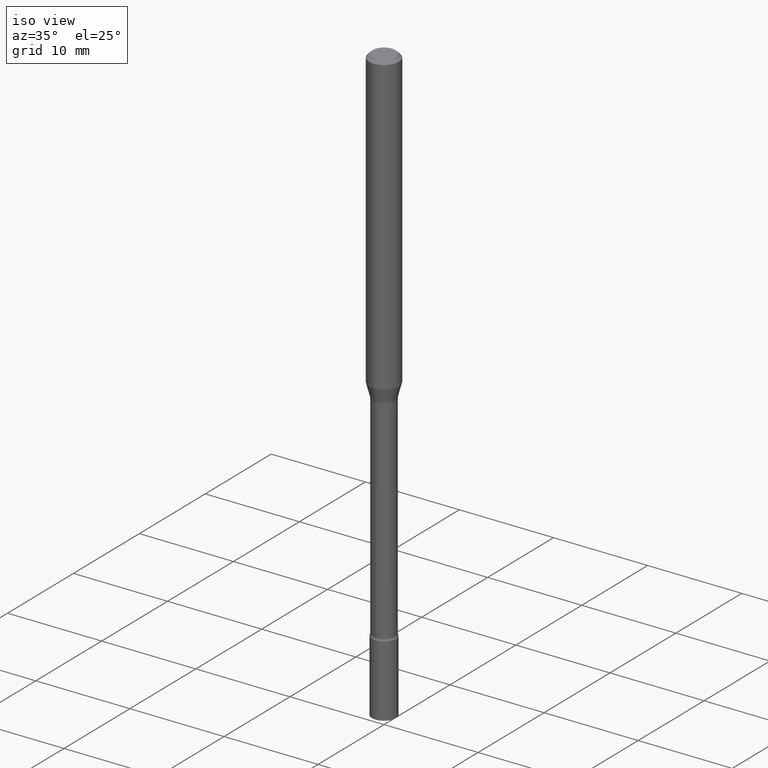
[diagram: clean part render]
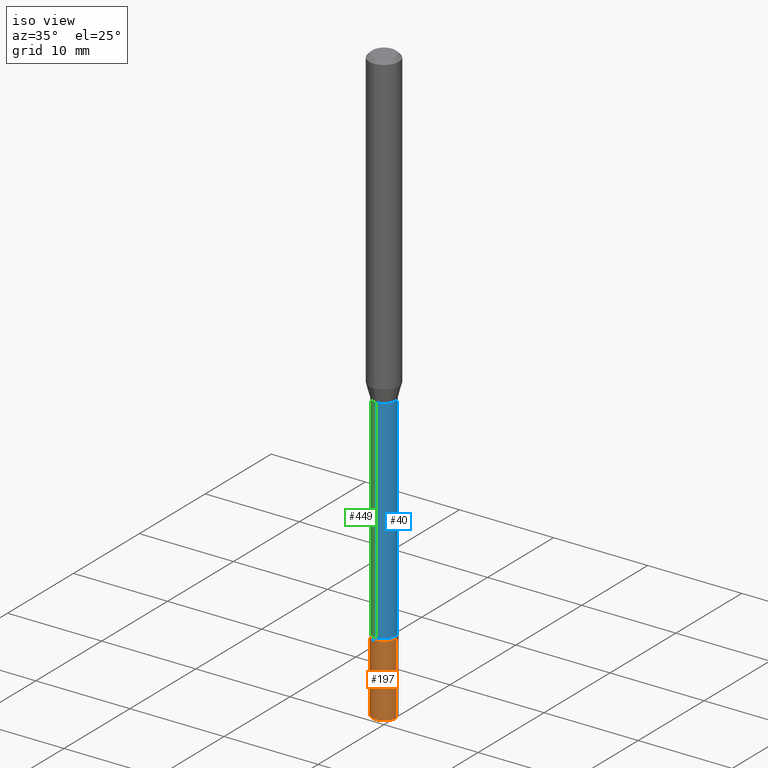
[diagram: same view with three faces highlighted in distinct colors, each labeled with its STEP entity id]
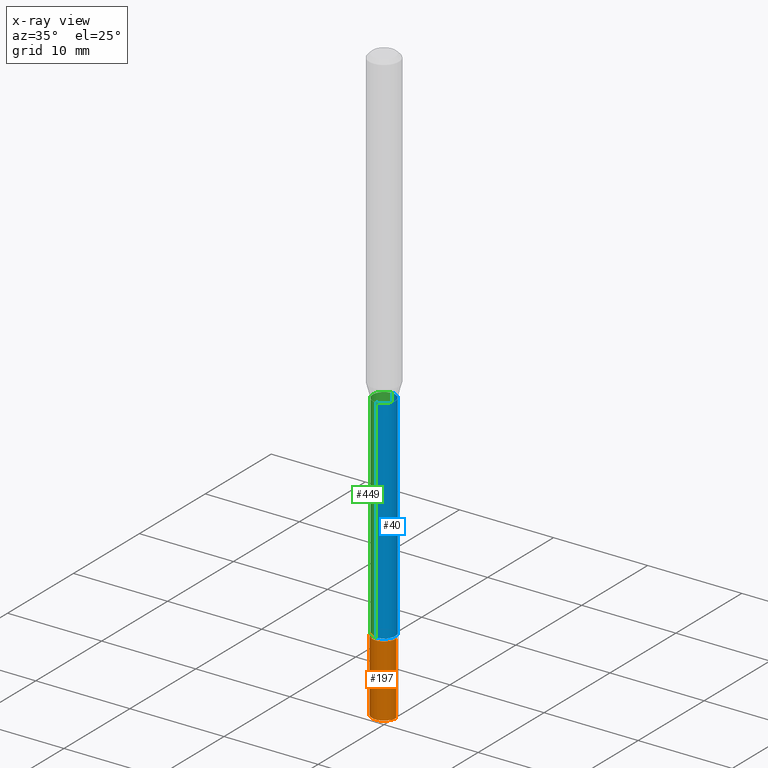
[diagram: x-ray of the same camera — body ghosted, the three highlighted faces saturated]
A machine part, iso view with three faces highlighted in distinct colors.
The next image is the same camera in x-ray (body ghosted, the three faces saturated) — at least one of them is partly hidden behind the body in this view.
Their STEP definitions:

[orange] entity #197 — the highlighted cylindrical surface (edge-blend (fillet) strip) has radius 1.27 mm, axis along (-0, 0, 1).
#51 = CARTESIAN_POINT ( 'NONE',  ( 5.380031373607300737E-29, -7.681258945454920203E-15, -2.200000000000000178 ) ) ;
#54 = EDGE_CURVE ( 'NONE', #109, #149, #142, .T. ) ;
#80 = CIRCLE ( 'NONE', #116, 0.05000000000000000278 ) ;
#107 = VERTEX_POINT ( 'NONE', #227 ) ;
#109 = VERTEX_POINT ( 'NONE', #453 ) ;
#116 = AXIS2_PLACEMENT_3D ( 'NONE', #51, #420, #401 ) ;
#119 = CYLINDRICAL_SURFACE ( 'NONE', #364, 0.05000000000000000278 ) ;
#128 = CARTESIAN_POINT ( 'NONE',  ( -0.05000000000000000278, -7.849709778401342953E-15, -2.200000000000000178 ) ) ;
#135 = DIRECTION ( 'NONE',  ( -2.445468806185136597E-29, 3.491481338843145583E-15, 1.000000000000000000 ) ) ;
#138 = CARTESIAN_POINT ( 'NONE',  ( 6.113672015462842613E-29, -8.728703347107864943E-15, -2.500000000000000000 ) ) ;
#142 = LINE ( 'NONE', #491, #405 ) ;
#149 = VERTEX_POINT ( 'NONE', #128 ) ;
#164 = DIRECTION ( 'NONE',  ( -2.445468806185136877E-29, 3.491481338843145188E-15, 1.000000000000000000 ) ) ;
#188 = EDGE_CURVE ( 'NONE', #149, #107, #80, .T. ) ;
#197 = ADVANCED_FACE ( 'NONE', ( #510 ), #119, .T. ) ;
#206 = ORIENTED_EDGE ( 'NONE', *, *, #478, .T. ) ;
#227 = CARTESIAN_POINT ( 'NONE',  ( 0.05000000000000000278, -8.030407079339233538E-15, -2.200000000000000178 ) ) ;
#228 = VERTEX_POINT ( 'NONE', #514 ) ;
#233 = DIRECTION ( 'NONE',  ( -2.445468806185136597E-29, 3.491481338843145583E-15, 1.000000000000000000 ) ) ;
#259 = DIRECTION ( 'NONE',  ( 1.000000000000000000, -6.982962677686274599E-15, 0.000000000000000000 ) ) ;
#336 = CARTESIAN_POINT ( 'NONE',  ( 0.05000000000000000278, -3.491481338843133848E-16, 2.438088387897968247E-30 ) ) ;
#363 = LINE ( 'NONE', #336, #517 ) ;
#364 = AXIS2_PLACEMENT_3D ( 'NONE', #489, #233, #384 ) ;
#380 = DIRECTION ( 'NONE',  ( -2.445468806185136877E-29, 3.491481338843145188E-15, 1.000000000000000000 ) ) ;
#384 = DIRECTION ( 'NONE',  ( 1.000000000000000000, -6.982962677686267499E-15, 4.876176775795936353E-29 ) ) ;
#401 = DIRECTION ( 'NONE',  ( 1.000000000000000000, -6.982962677686274599E-15, 0.000000000000000000 ) ) ;
#405 = VECTOR ( 'NONE', #380, 39.37007874015748143 ) ;
#418 = EDGE_CURVE ( 'NONE', #109, #228, #476, .T. ) ;
#420 = DIRECTION ( 'NONE',  ( -2.445468806185136597E-29, 3.491481338843145583E-15, 1.000000000000000000 ) ) ;
#434 = EDGE_LOOP ( 'NONE', ( #473, #475, #206, #470 ) ) ;
#453 = CARTESIAN_POINT ( 'NONE',  ( -0.05000000000000000278, -7.849709778401342953E-15, -2.500000000000000000 ) ) ;
#470 = ORIENTED_EDGE ( 'NONE', *, *, #188, .F. ) ;
#473 = ORIENTED_EDGE ( 'NONE', *, *, #54, .F. ) ;
#475 = ORIENTED_EDGE ( 'NONE', *, *, #418, .T. ) ;
#476 = CIRCLE ( 'NONE', #508, 0.05000000000000000278 ) ;
#478 = EDGE_CURVE ( 'NONE', #228, #107, #363, .T. ) ;
#489 = CARTESIAN_POINT ( 'NONE',  ( 0.000000000000000000, 0.000000000000000000, 0.000000000000000000 ) ) ;
#491 = CARTESIAN_POINT ( 'NONE',  ( -0.05000000000000000278, 3.552713678800501127E-16, -2.459467545127453311E-30 ) ) ;
#508 = AXIS2_PLACEMENT_3D ( 'NONE', #138, #135, #259 ) ;
#510 = FACE_OUTER_BOUND ( 'NONE', #434, .T. ) ;
#514 = CARTESIAN_POINT ( 'NONE',  ( 0.05000000000000000278, -9.077851480992178278E-15, -2.500000000000000000 ) ) ;
#517 = VECTOR ( 'NONE', #164, 39.37007874015748143 ) ;

[blue] entity #40 — the highlighted cylindrical surface (edge-blend (fillet) strip) has radius 1.1938 mm, axis along (-0, 0, 1).
#1 = VECTOR ( 'NONE', #120, 39.37007874015748143 ) ;
#17 = CARTESIAN_POINT ( 'NONE',  ( 3.183857187869469092E-29, -4.545937445875147629E-15, -1.301974787463811456 ) ) ;
#23 = DIRECTION ( 'NONE',  ( -6.982962677686266711E-15, -1.000000000000000000, 5.812442539711199378E-15 ) ) ;
#30 = CARTESIAN_POINT ( 'NONE',  ( -3.281992458512017981E-16, -0.04700000000000777167, -2.190999999999999837 ) ) ;
#40 = ADVANCED_FACE ( 'NONE', ( #497 ), #106, .T. ) ;
#43 = DIRECTION ( 'NONE',  ( -2.445406177235951099E-29, 3.491571027062997354E-15, 1.000000000000000000 ) ) ;
#49 = LINE ( 'NONE', #330, #1 ) ;
#55 = DIRECTION ( 'NONE',  ( -2.445406177235951099E-29, 3.491571027062997354E-15, 1.000000000000000000 ) ) ;
#60 = CARTESIAN_POINT ( 'NONE',  ( 0.000000000000000000, 0.000000000000000000, 0.000000000000000000 ) ) ;
#64 = CARTESIAN_POINT ( 'NONE',  ( 3.446132268437026374E-16, 0.04699999999999247141, -2.191000000000000281 ) ) ;
#106 = CYLINDRICAL_SURFACE ( 'NONE', #467, 0.04700000000000005562 ) ;
#115 = VERTEX_POINT ( 'NONE', #64 ) ;
#118 = EDGE_CURVE ( 'NONE', #168, #424, #270, .T. ) ;
#120 = DIRECTION ( 'NONE',  ( -2.445406177235951099E-29, 3.491571027062997354E-15, 1.000000000000000000 ) ) ;
#155 = EDGE_CURVE ( 'NONE', #512, #168, #49, .T. ) ;
#168 = VERTEX_POINT ( 'NONE', #244 ) ;
#182 = EDGE_LOOP ( 'NONE', ( #442, #223, #483, #311 ) ) ;
#218 = CIRCLE ( 'NONE', #395, 0.04700000000000012501 ) ;
#223 = ORIENTED_EDGE ( 'NONE', *, *, #386, .T. ) ;
#239 = AXIS2_PLACEMENT_3D ( 'NONE', #17, #263, #23 ) ;
#244 = CARTESIAN_POINT ( 'NONE',  ( -3.281992458512226536E-16, -0.04700000000000453815, -1.301974787463811012 ) ) ;
#263 = DIRECTION ( 'NONE',  ( -2.445406177235951099E-29, 3.491571027062997354E-15, 1.000000000000000000 ) ) ;
#270 = CIRCLE ( 'NONE', #239, 0.04699999999999999317 ) ;
#284 = DIRECTION ( 'NONE',  ( -6.982962677686265133E-15, -1.000000000000000000, 5.812442539711182812E-15 ) ) ;
#307 = VECTOR ( 'NONE', #410, 39.37007874015748143 ) ;
#311 = ORIENTED_EDGE ( 'NONE', *, *, #155, .F. ) ;
#330 = CARTESIAN_POINT ( 'NONE',  ( -3.281992458512548983E-16, -0.04700000000000005562, 1.641038382719610823E-16 ) ) ;
#357 = EDGE_CURVE ( 'NONE', #512, #115, #218, .T. ) ;
#386 = EDGE_CURVE ( 'NONE', #115, #424, #411, .T. ) ;
#394 = CARTESIAN_POINT ( 'NONE',  ( 5.357884934323970579E-29, -7.650032120295029046E-15, -2.191000000000000281 ) ) ;
#395 = AXIS2_PLACEMENT_3D ( 'NONE', #394, #43, #284 ) ;
#410 = DIRECTION ( 'NONE',  ( -2.445406177235951099E-29, 3.491571027062997354E-15, 1.000000000000000000 ) ) ;
#411 = LINE ( 'NONE', #484, #307 ) ;
#424 = VERTEX_POINT ( 'NONE', #444 ) ;
#442 = ORIENTED_EDGE ( 'NONE', *, *, #357, .T. ) ;
#444 = CARTESIAN_POINT ( 'NONE',  ( 3.339550858073009279E-16, 0.04699999999999544820, -1.301974787463811678 ) ) ;
#467 = AXIS2_PLACEMENT_3D ( 'NONE', #60, #55, #487 ) ;
#483 = ORIENTED_EDGE ( 'NONE', *, *, #118, .F. ) ;
#484 = CARTESIAN_POINT ( 'NONE',  ( 3.339550858072474333E-16, 0.04700000000000005562, -1.641038382719610823E-16 ) ) ;
#487 = DIRECTION ( 'NONE',  ( -6.982962677686265922E-15, -1.000000000000000000, 3.491571027062997749E-15 ) ) ;
#497 = FACE_OUTER_BOUND ( 'NONE', #182, .T. ) ;
#512 = VERTEX_POINT ( 'NONE', #30 ) ;

[green] entity #449 — the highlighted cylindrical surface (edge-blend (fillet) strip) has radius 1.1938 mm, axis along (-0, 0, 1).
#1 = VECTOR ( 'NONE', #120, 39.37007874015748143 ) ;
#8 = CYLINDRICAL_SURFACE ( 'NONE', #81, 0.04700000000000005562 ) ;
#30 = CARTESIAN_POINT ( 'NONE',  ( -3.281992458512017981E-16, -0.04700000000000777167, -2.190999999999999837 ) ) ;
#45 = FACE_OUTER_BOUND ( 'NONE', #198, .T. ) ;
#49 = LINE ( 'NONE', #330, #1 ) ;
#62 = ORIENTED_EDGE ( 'NONE', *, *, #393, .T. ) ;
#64 = CARTESIAN_POINT ( 'NONE',  ( 3.446132268437026374E-16, 0.04699999999999247141, -2.191000000000000281 ) ) ;
#81 = AXIS2_PLACEMENT_3D ( 'NONE', #89, #403, #447 ) ;
#89 = CARTESIAN_POINT ( 'NONE',  ( 0.000000000000000000, 0.000000000000000000, 0.000000000000000000 ) ) ;
#97 = CARTESIAN_POINT ( 'NONE',  ( 5.357884934323970579E-29, -7.650032120295029046E-15, -2.191000000000000281 ) ) ;
#104 = CARTESIAN_POINT ( 'NONE',  ( 3.183857187869469092E-29, -4.545937445875147629E-15, -1.301974787463811456 ) ) ;
#115 = VERTEX_POINT ( 'NONE', #64 ) ;
#120 = DIRECTION ( 'NONE',  ( -2.445406177235951099E-29, 3.491571027062997354E-15, 1.000000000000000000 ) ) ;
#125 = DIRECTION ( 'NONE',  ( -2.445406177235951099E-29, 3.491571027062997354E-15, 1.000000000000000000 ) ) ;
#155 = EDGE_CURVE ( 'NONE', #512, #168, #49, .T. ) ;
#168 = VERTEX_POINT ( 'NONE', #244 ) ;
#183 = DIRECTION ( 'NONE',  ( -2.445406177235951099E-29, 3.491571027062997354E-15, 1.000000000000000000 ) ) ;
#198 = EDGE_LOOP ( 'NONE', ( #388, #62, #443, #368 ) ) ;
#215 = DIRECTION ( 'NONE',  ( -6.982962677686265133E-15, -1.000000000000000000, 5.812442539711182812E-15 ) ) ;
#244 = CARTESIAN_POINT ( 'NONE',  ( -3.281992458512226536E-16, -0.04700000000000453815, -1.301974787463811012 ) ) ;
#255 = EDGE_CURVE ( 'NONE', #424, #168, #333, .T. ) ;
#307 = VECTOR ( 'NONE', #410, 39.37007874015748143 ) ;
#330 = CARTESIAN_POINT ( 'NONE',  ( -3.281992458512548983E-16, -0.04700000000000005562, 1.641038382719610823E-16 ) ) ;
#333 = CIRCLE ( 'NONE', #373, 0.04699999999999999317 ) ;
#368 = ORIENTED_EDGE ( 'NONE', *, *, #255, .F. ) ;
#373 = AXIS2_PLACEMENT_3D ( 'NONE', #104, #183, #464 ) ;
#386 = EDGE_CURVE ( 'NONE', #115, #424, #411, .T. ) ;
#388 = ORIENTED_EDGE ( 'NONE', *, *, #386, .F. ) ;
#393 = EDGE_CURVE ( 'NONE', #115, #512, #459, .T. ) ;
#403 = DIRECTION ( 'NONE',  ( -2.445406177235951099E-29, 3.491571027062997354E-15, 1.000000000000000000 ) ) ;
#410 = DIRECTION ( 'NONE',  ( -2.445406177235951099E-29, 3.491571027062997354E-15, 1.000000000000000000 ) ) ;
#411 = LINE ( 'NONE', #484, #307 ) ;
#424 = VERTEX_POINT ( 'NONE', #444 ) ;
#443 = ORIENTED_EDGE ( 'NONE', *, *, #155, .T. ) ;
#444 = CARTESIAN_POINT ( 'NONE',  ( 3.339550858073009279E-16, 0.04699999999999544820, -1.301974787463811678 ) ) ;
#447 = DIRECTION ( 'NONE',  ( -6.982962677686265922E-15, -1.000000000000000000, 3.491571027062997749E-15 ) ) ;
#449 = ADVANCED_FACE ( 'NONE', ( #45 ), #8, .T. ) ;
#459 = CIRCLE ( 'NONE', #469, 0.04700000000000012501 ) ;
#464 = DIRECTION ( 'NONE',  ( -6.982962677686266711E-15, -1.000000000000000000, 5.812442539711199378E-15 ) ) ;
#469 = AXIS2_PLACEMENT_3D ( 'NONE', #97, #125, #215 ) ;
#484 = CARTESIAN_POINT ( 'NONE',  ( 3.339550858072474333E-16, 0.04700000000000005562, -1.641038382719610823E-16 ) ) ;
#512 = VERTEX_POINT ( 'NONE', #30 ) ;